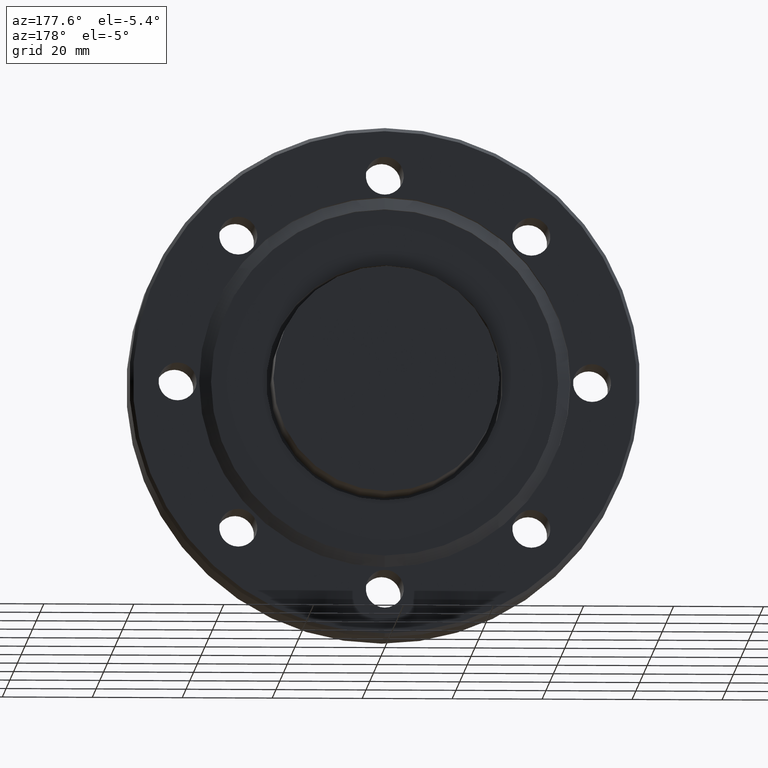
[diagram: clean part render]
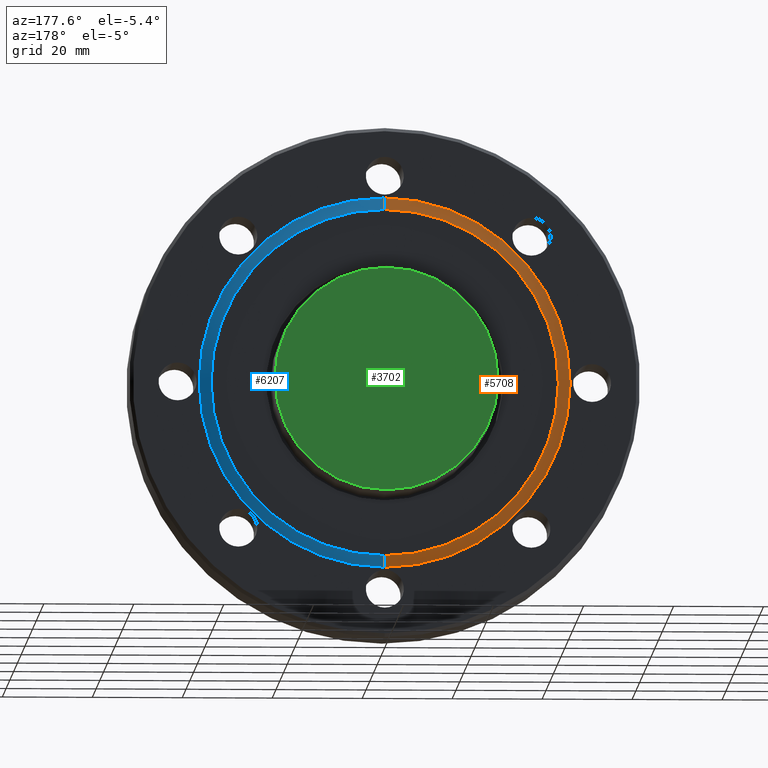
[diagram: same view with three faces highlighted in distinct colors, each labeled with its STEP entity id]
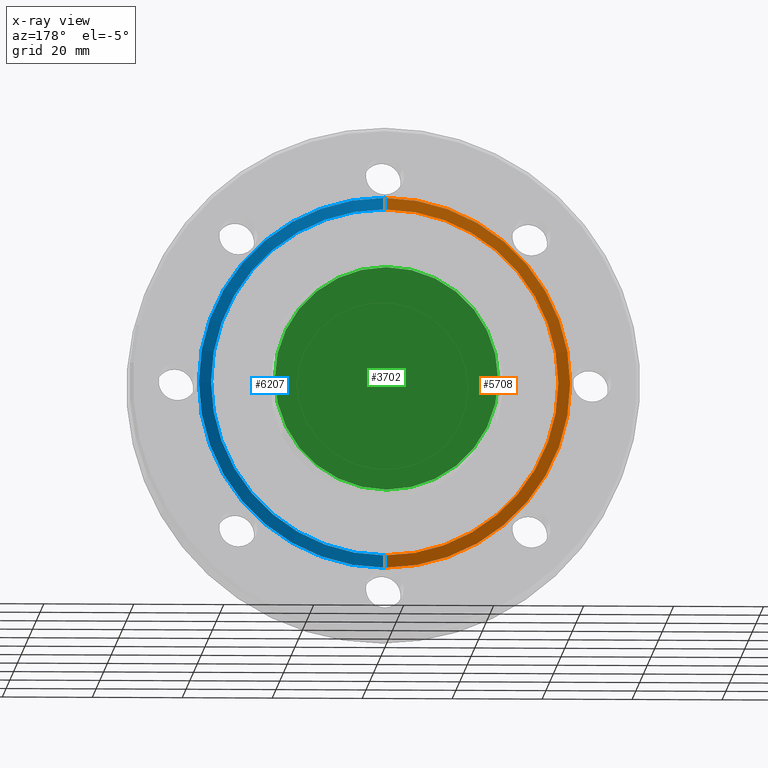
[diagram: x-ray of the same camera — body ghosted, the three highlighted faces saturated]
A machine part, auxiliary view with three faces highlighted in distinct colors.
The next image is the same camera in x-ray (body ghosted, the three faces saturated) — at least one of them is partly hidden behind the body in this view.
Their STEP definitions:

[orange] entity #5708 — the highlighted conical surface has half-angle 70 deg.
#168 = CARTESIAN_POINT ( 'NONE',  ( 0.0000000000000000000, -0.02499999999999991812, 0.0000000000000000000 ) ) ;
#212 = EDGE_CURVE ( 'NONE', #5245, #6293, #8353, .T. ) ;
#428 = CARTESIAN_POINT ( 'NONE',  ( -1.861463134703979409E-16, -0.02499999999999991812, -1.520000000000001794 ) ) ;
#810 = FACE_OUTER_BOUND ( 'NONE', #7163, .T. ) ;
#975 = AXIS2_PLACEMENT_3D ( 'NONE', #3692, #8511, #3639 ) ;
#1297 = EDGE_CURVE ( 'NONE', #7050, #5245, #2009, .T. ) ;
#1505 = VECTOR ( 'NONE', #6073, 39.37007874015748143 ) ;
#1823 = ORIENTED_EDGE ( 'NONE', *, *, #5057, .F. ) ;
#2009 = CIRCLE ( 'NONE', #975, 1.520000000000001794 ) ;
#2311 = DIRECTION ( 'NONE',  ( 0.0000000000000000000, -1.000000000000000000, 0.0000000000000000000 ) ) ;
#2674 = CARTESIAN_POINT ( 'NONE',  ( 0.0000000000000000000, -0.06321687459795032049, 1.624999999999999556 ) ) ;
#2842 = ORIENTED_EDGE ( 'NONE', *, *, #1297, .T. ) ;
#3045 = VERTEX_POINT ( 'NONE', #2674 ) ;
#3304 = VECTOR ( 'NONE', #7980, 39.37007874015748143 ) ;
#3317 = CARTESIAN_POINT ( 'NONE',  ( 0.0000000000000000000, -0.02499999999999991812, 1.520000000000001794 ) ) ;
#3531 = EDGE_CURVE ( 'NONE', #7050, #3045, #8312, .T. ) ;
#3639 = DIRECTION ( 'NONE',  ( 0.0000000000000000000, 0.0000000000000000000, 1.000000000000000000 ) ) ;
#3692 = CARTESIAN_POINT ( 'NONE',  ( 0.0000000000000000000, -0.02499999999999991812, 0.0000000000000000000 ) ) ;
#4260 = CONICAL_SURFACE ( 'NONE', #4824, 1.520000000000001794, 1.221730476396029719 ) ;
#4322 = DIRECTION ( 'NONE',  ( 0.0000000000000000000, 0.0000000000000000000, 1.000000000000000000 ) ) ;
#4824 = AXIS2_PLACEMENT_3D ( 'NONE', #168, #8370, #7722 ) ;
#4949 = CIRCLE ( 'NONE', #5636, 1.624999999999999556 ) ;
#5057 = EDGE_CURVE ( 'NONE', #3045, #6293, #4949, .T. ) ;
#5245 = VERTEX_POINT ( 'NONE', #8255 ) ;
#5636 = AXIS2_PLACEMENT_3D ( 'NONE', #5816, #2311, #4322 ) ;
#5708 = ADVANCED_FACE ( 'NONE', ( #810 ), #4260, .T. ) ;
#5816 = CARTESIAN_POINT ( 'NONE',  ( 0.0000000000000000000, -0.06321687459795032049, 0.0000000000000000000 ) ) ;
#6073 = DIRECTION ( 'NONE',  ( 0.0000000000000000000, -0.3420201433256693790, 0.9396926207859080948 ) ) ;
#6293 = VERTEX_POINT ( 'NONE', #7300 ) ;
#7050 = VERTEX_POINT ( 'NONE', #7360 ) ;
#7163 = EDGE_LOOP ( 'NONE', ( #2842, #8879, #1823, #7992 ) ) ;
#7300 = CARTESIAN_POINT ( 'NONE',  ( -1.990051048614446651E-16, -0.06321687459795032049, -1.624999999999997558 ) ) ;
#7360 = CARTESIAN_POINT ( 'NONE',  ( 0.0000000000000000000, -0.02499999999999991812, 1.520000000000001794 ) ) ;
#7722 = DIRECTION ( 'NONE',  ( 0.0000000000000000000, 0.0000000000000000000, 1.000000000000000000 ) ) ;
#7980 = DIRECTION ( 'NONE',  ( -1.150791560227850270E-16, -0.3420201433256693790, -0.9396926207859080948 ) ) ;
#7992 = ORIENTED_EDGE ( 'NONE', *, *, #3531, .F. ) ;
#8255 = CARTESIAN_POINT ( 'NONE',  ( -1.861463134703977190E-16, -0.02499999999999991812, -1.520000000000000240 ) ) ;
#8312 = LINE ( 'NONE', #3317, #1505 ) ;
#8353 = LINE ( 'NONE', #428, #3304 ) ;
#8370 = DIRECTION ( 'NONE',  ( 0.0000000000000000000, -1.000000000000000000, 0.0000000000000000000 ) ) ;
#8511 = DIRECTION ( 'NONE',  ( 0.0000000000000000000, -1.000000000000000000, 0.0000000000000000000 ) ) ;
#8879 = ORIENTED_EDGE ( 'NONE', *, *, #212, .T. ) ;

[blue] entity #6207 — the highlighted conical surface has half-angle 70 deg.
#38 = ORIENTED_EDGE ( 'NONE', *, *, #212, .F. ) ;
#212 = EDGE_CURVE ( 'NONE', #5245, #6293, #8353, .T. ) ;
#428 = CARTESIAN_POINT ( 'NONE',  ( -1.861463134703979409E-16, -0.02499999999999991812, -1.520000000000001794 ) ) ;
#1382 = CIRCLE ( 'NONE', #4228, 1.520000000000001794 ) ;
#1505 = VECTOR ( 'NONE', #6073, 39.37007874015748143 ) ;
#1582 = CARTESIAN_POINT ( 'NONE',  ( 0.0000000000000000000, -0.06321687459795032049, 0.0000000000000000000 ) ) ;
#2069 = CONICAL_SURFACE ( 'NONE', #5404, 1.520000000000001794, 1.221730476396029719 ) ;
#2252 = CARTESIAN_POINT ( 'NONE',  ( 0.0000000000000000000, -0.02499999999999991812, 0.0000000000000000000 ) ) ;
#2406 = DIRECTION ( 'NONE',  ( 0.0000000000000000000, 0.0000000000000000000, 1.000000000000000000 ) ) ;
#2674 = CARTESIAN_POINT ( 'NONE',  ( 0.0000000000000000000, -0.06321687459795032049, 1.624999999999999556 ) ) ;
#3045 = VERTEX_POINT ( 'NONE', #2674 ) ;
#3265 = EDGE_CURVE ( 'NONE', #6293, #3045, #5735, .T. ) ;
#3304 = VECTOR ( 'NONE', #7980, 39.37007874015748143 ) ;
#3317 = CARTESIAN_POINT ( 'NONE',  ( 0.0000000000000000000, -0.02499999999999991812, 1.520000000000001794 ) ) ;
#3497 = ORIENTED_EDGE ( 'NONE', *, *, #3531, .T. ) ;
#3531 = EDGE_CURVE ( 'NONE', #7050, #3045, #8312, .T. ) ;
#3674 = EDGE_LOOP ( 'NONE', ( #38, #8606, #3497, #5512 ) ) ;
#3730 = DIRECTION ( 'NONE',  ( 0.0000000000000000000, 0.0000000000000000000, 1.000000000000000000 ) ) ;
#4228 = AXIS2_PLACEMENT_3D ( 'NONE', #2252, #6355, #5007 ) ;
#5007 = DIRECTION ( 'NONE',  ( 0.0000000000000000000, 0.0000000000000000000, 1.000000000000000000 ) ) ;
#5245 = VERTEX_POINT ( 'NONE', #8255 ) ;
#5248 = EDGE_CURVE ( 'NONE', #5245, #7050, #1382, .T. ) ;
#5404 = AXIS2_PLACEMENT_3D ( 'NONE', #8589, #7881, #2406 ) ;
#5512 = ORIENTED_EDGE ( 'NONE', *, *, #3265, .F. ) ;
#5735 = CIRCLE ( 'NONE', #6540, 1.624999999999999556 ) ;
#5766 = DIRECTION ( 'NONE',  ( 0.0000000000000000000, -1.000000000000000000, 0.0000000000000000000 ) ) ;
#6073 = DIRECTION ( 'NONE',  ( 0.0000000000000000000, -0.3420201433256693790, 0.9396926207859080948 ) ) ;
#6207 = ADVANCED_FACE ( 'NONE', ( #7514 ), #2069, .T. ) ;
#6293 = VERTEX_POINT ( 'NONE', #7300 ) ;
#6355 = DIRECTION ( 'NONE',  ( 0.0000000000000000000, -1.000000000000000000, 0.0000000000000000000 ) ) ;
#6540 = AXIS2_PLACEMENT_3D ( 'NONE', #1582, #5766, #3730 ) ;
#7050 = VERTEX_POINT ( 'NONE', #7360 ) ;
#7300 = CARTESIAN_POINT ( 'NONE',  ( -1.990051048614446651E-16, -0.06321687459795032049, -1.624999999999997558 ) ) ;
#7360 = CARTESIAN_POINT ( 'NONE',  ( 0.0000000000000000000, -0.02499999999999991812, 1.520000000000001794 ) ) ;
#7514 = FACE_OUTER_BOUND ( 'NONE', #3674, .T. ) ;
#7881 = DIRECTION ( 'NONE',  ( 0.0000000000000000000, -1.000000000000000000, 0.0000000000000000000 ) ) ;
#7980 = DIRECTION ( 'NONE',  ( -1.150791560227850270E-16, -0.3420201433256693790, -0.9396926207859080948 ) ) ;
#8255 = CARTESIAN_POINT ( 'NONE',  ( -1.861463134703977190E-16, -0.02499999999999991812, -1.520000000000000240 ) ) ;
#8312 = LINE ( 'NONE', #3317, #1505 ) ;
#8353 = LINE ( 'NONE', #428, #3304 ) ;
#8589 = CARTESIAN_POINT ( 'NONE',  ( 0.0000000000000000000, -0.02499999999999991812, 0.0000000000000000000 ) ) ;
#8606 = ORIENTED_EDGE ( 'NONE', *, *, #5248, .T. ) ;

[green] entity #3702 — the highlighted planar face has unit normal (0, -1, -0).
#455 = CIRCLE ( 'NONE', #1910, 0.9775000000000000355 ) ;
#704 = PLANE ( 'NONE',  #2446 ) ;
#760 = DIRECTION ( 'NONE',  ( 0.0000000000000000000, -1.000000000000000000, -0.0000000000000000000 ) ) ;
#1026 = CARTESIAN_POINT ( 'NONE',  ( 0.0000000000000000000, 0.3500000000000000888, -0.9775000000000000355 ) ) ;
#1538 = EDGE_CURVE ( 'NONE', #5895, #4783, #455, .T. ) ;
#1910 = AXIS2_PLACEMENT_3D ( 'NONE', #6199, #2637, #3346 ) ;
#2068 = CARTESIAN_POINT ( 'NONE',  ( 0.0000000000000000000, 0.3500000000000002554, 0.0000000000000000000 ) ) ;
#2446 = AXIS2_PLACEMENT_3D ( 'NONE', #2068, #760, #7594 ) ;
#2637 = DIRECTION ( 'NONE',  ( -0.0000000000000000000, -1.000000000000000000, -0.0000000000000000000 ) ) ;
#2848 = EDGE_CURVE ( 'NONE', #4783, #5895, #8428, .T. ) ;
#3186 = CARTESIAN_POINT ( 'NONE',  ( 0.0000000000000000000, 0.3500000000000000888, 0.0000000000000000000 ) ) ;
#3346 = DIRECTION ( 'NONE',  ( 0.0000000000000000000, 0.0000000000000000000, -1.000000000000000000 ) ) ;
#3702 = ADVANCED_FACE ( 'NONE', ( #7467 ), #704, .F. ) ;
#3853 = DIRECTION ( 'NONE',  ( 0.0000000000000000000, 0.0000000000000000000, -1.000000000000000000 ) ) ;
#4162 = AXIS2_PLACEMENT_3D ( 'NONE', #3186, #7994, #3853 ) ;
#4783 = VERTEX_POINT ( 'NONE', #8355 ) ;
#5895 = VERTEX_POINT ( 'NONE', #1026 ) ;
#6199 = CARTESIAN_POINT ( 'NONE',  ( 0.0000000000000000000, 0.3500000000000000888, 0.0000000000000000000 ) ) ;
#6666 = EDGE_LOOP ( 'NONE', ( #7260, #7940 ) ) ;
#7260 = ORIENTED_EDGE ( 'NONE', *, *, #1538, .F. ) ;
#7467 = FACE_OUTER_BOUND ( 'NONE', #6666, .T. ) ;
#7594 = DIRECTION ( 'NONE',  ( 0.0000000000000000000, 0.0000000000000000000, -1.000000000000000000 ) ) ;
#7940 = ORIENTED_EDGE ( 'NONE', *, *, #2848, .F. ) ;
#7994 = DIRECTION ( 'NONE',  ( -0.0000000000000000000, -1.000000000000000000, -0.0000000000000000000 ) ) ;
#8355 = CARTESIAN_POINT ( 'NONE',  ( 1.197092246166537759E-16, 0.3500000000000000888, 0.9775000000000000355 ) ) ;
#8428 = CIRCLE ( 'NONE', #4162, 0.9775000000000000355 ) ;